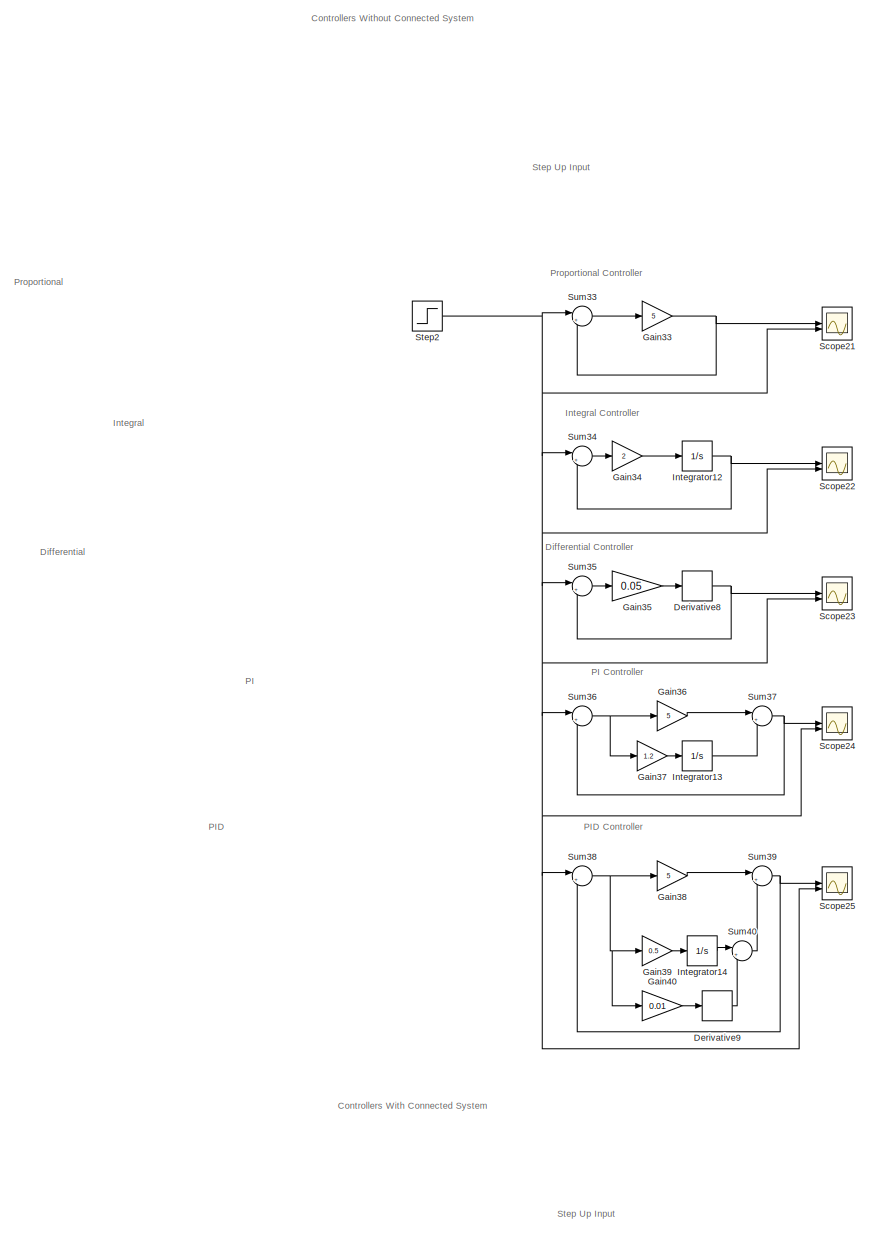
[diagram: root canvas - part 1/7, top left region]
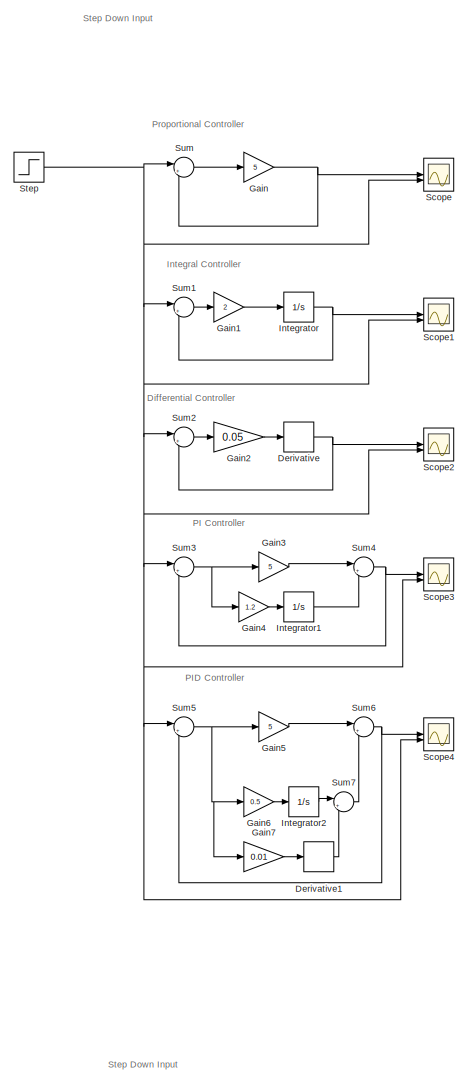
[diagram: root canvas - part 2/7, central region]
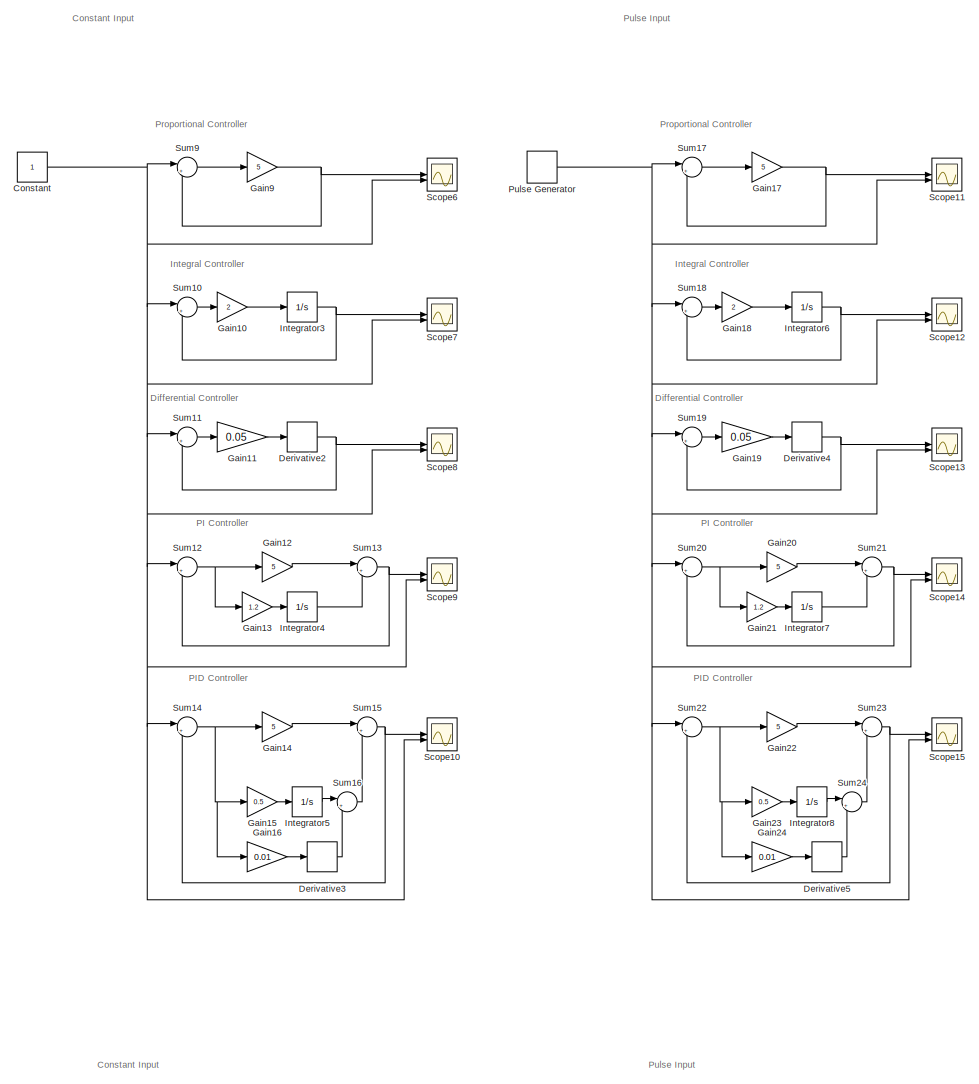
[diagram: root canvas - part 3/7, central region]
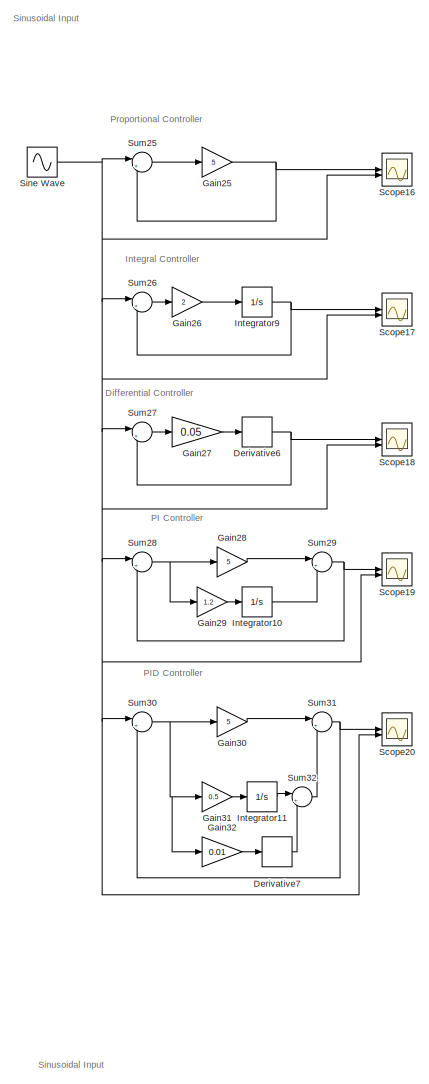
[diagram: root canvas - part 4/7, middle right region]
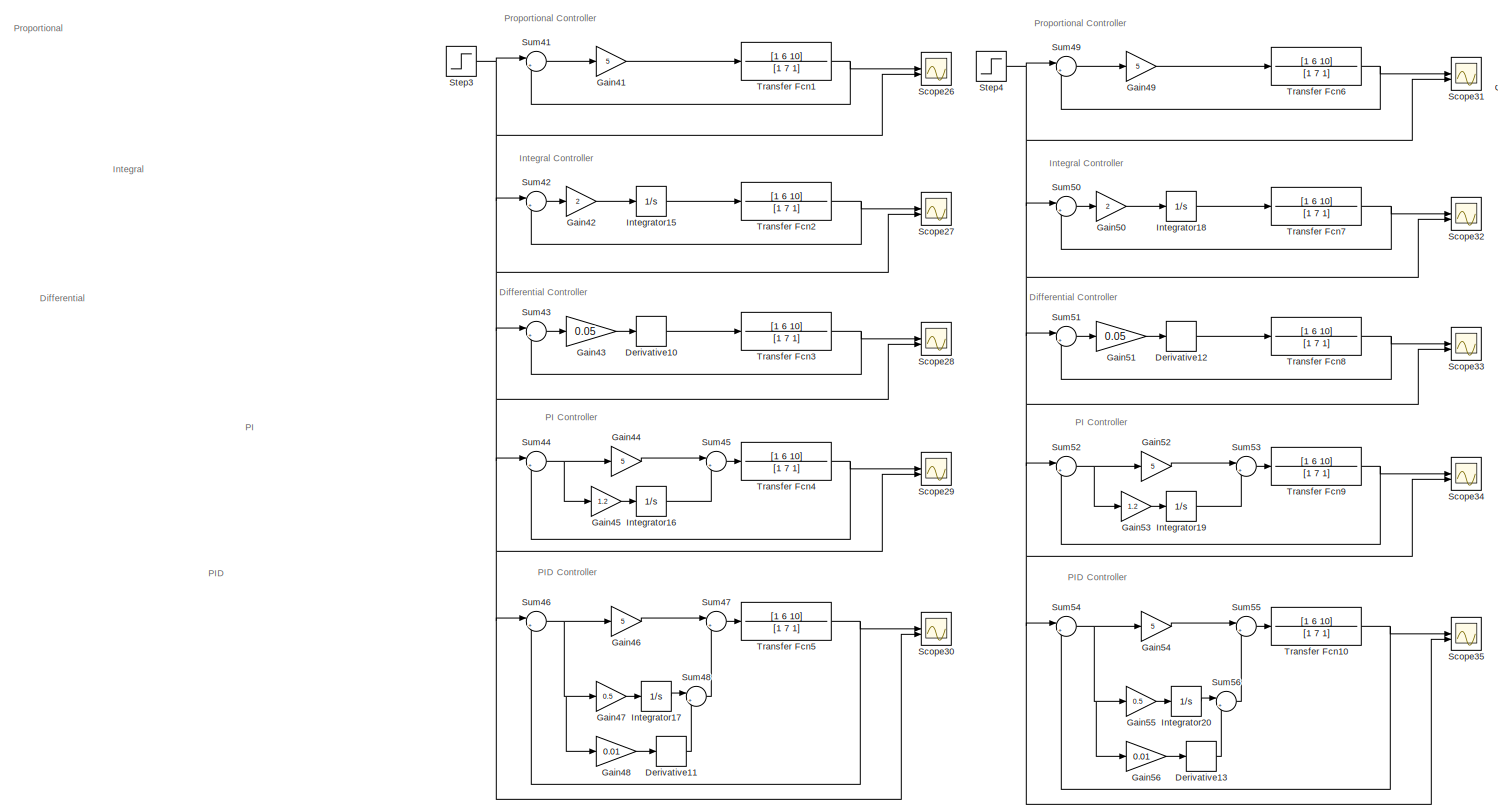
[diagram: root canvas - part 5/7, bottom left region]
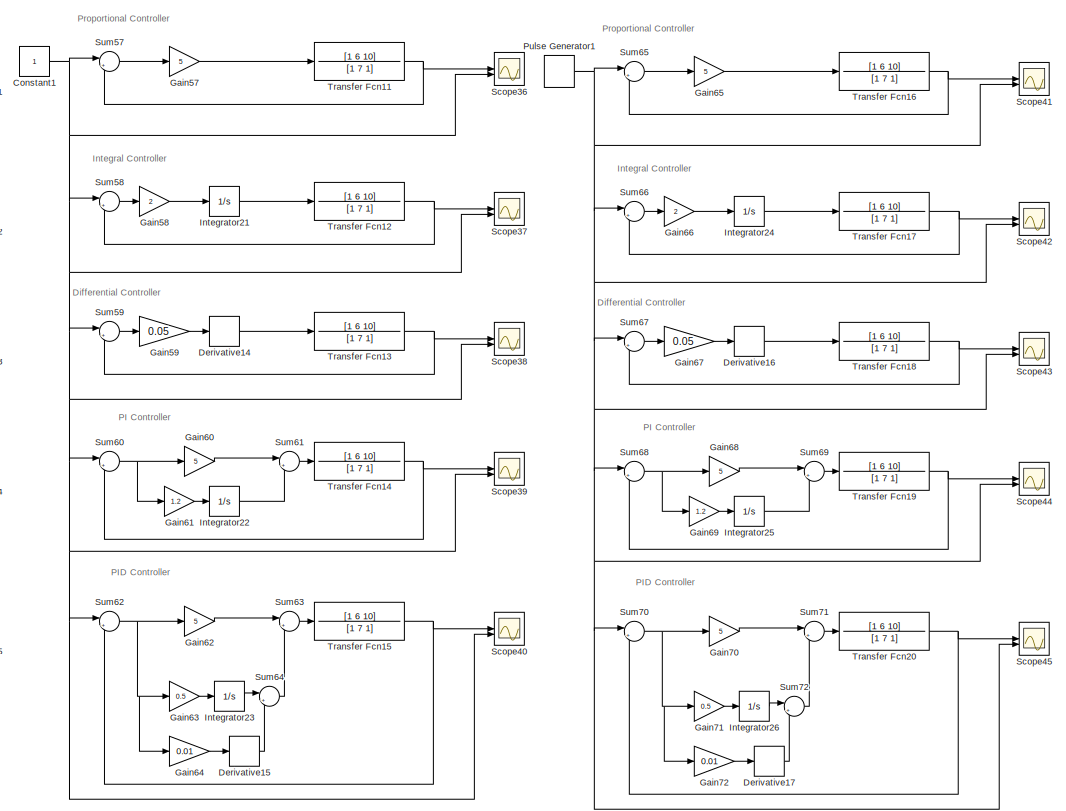
[diagram: root canvas - part 6/7, bottom center region]
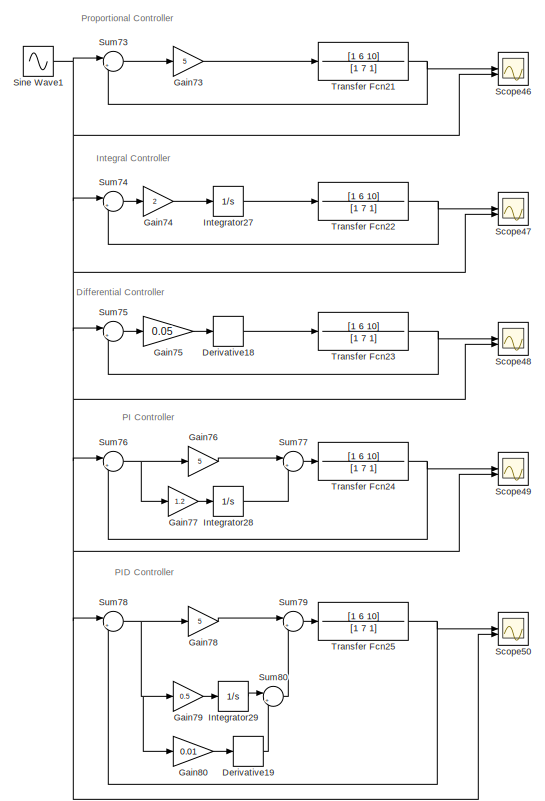
[diagram: root canvas - part 7/7, bottom right region]
MODEL slx_68e6b6f3994a
KIND model
CONFIG AbsTol = auto
CONFIG EnableMultiTasking = off
CONFIG FixedStep = auto
CONFIG MaxStep = auto
CONFIG MinStep = auto
CONFIG RelTol = 1e-9
CONFIG SampleTimeConstraint = Unconstrained
CONFIG SolverName = VariableStepAuto
CONFIG StartTime = 0.0
CONFIG StopTime = 12
BLOCK [Constant] Constant
BLOCK [Constant] Constant1
BLOCK [Derivative] Derivative
BLOCK [Derivative] Derivative1
BLOCK [Derivative] Derivative10
BLOCK [Derivative] Derivative11
BLOCK [Derivative] Derivative12
BLOCK [Derivative] Derivative13
BLOCK [Derivative] Derivative14
BLOCK [Derivative] Derivative15
BLOCK [Derivative] Derivative16
BLOCK [Derivative] Derivative17
BLOCK [Derivative] Derivative18
BLOCK [Derivative] Derivative19
BLOCK [Derivative] Derivative2
BLOCK [Derivative] Derivative3
BLOCK [Derivative] Derivative4
BLOCK [Derivative] Derivative5
BLOCK [Derivative] Derivative6
BLOCK [Derivative] Derivative7
BLOCK [Derivative] Derivative8
BLOCK [Derivative] Derivative9
BLOCK [Gain] Gain
  Gain = 5
BLOCK [Gain] Gain1
  Gain = 2
BLOCK [Gain] Gain10
  Gain = 2
BLOCK [Gain] Gain11
  Gain = 0.05
BLOCK [Gain] Gain12
  Gain = 5
BLOCK [Gain] Gain13
  Gain = 1.2
BLOCK [Gain] Gain14
  Gain = 5
BLOCK [Gain] Gain15
  Gain = 0.5
BLOCK [Gain] Gain16
  Gain = 0.01
BLOCK [Gain] Gain17
  Gain = 5
BLOCK [Gain] Gain18
  Gain = 2
BLOCK [Gain] Gain19
  Gain = 0.05
BLOCK [Gain] Gain2
  Gain = 0.05
BLOCK [Gain] Gain20
  Gain = 5
BLOCK [Gain] Gain21
  Gain = 1.2
BLOCK [Gain] Gain22
  Gain = 5
BLOCK [Gain] Gain23
  Gain = 0.5
BLOCK [Gain] Gain24
  Gain = 0.01
BLOCK [Gain] Gain25
  Gain = 5
BLOCK [Gain] Gain26
  Gain = 2
BLOCK [Gain] Gain27
  Gain = 0.05
BLOCK [Gain] Gain28
  Gain = 5
BLOCK [Gain] Gain29
  Gain = 1.2
BLOCK [Gain] Gain3
  Gain = 5
BLOCK [Gain] Gain30
  Gain = 5
BLOCK [Gain] Gain31
  Gain = 0.5
BLOCK [Gain] Gain32
  Gain = 0.01
BLOCK [Gain] Gain33
  Gain = 5
BLOCK [Gain] Gain34
  Gain = 2
BLOCK [Gain] Gain35
  Gain = 0.05
BLOCK [Gain] Gain36
  Gain = 5
BLOCK [Gain] Gain37
  Gain = 1.2
BLOCK [Gain] Gain38
  Gain = 5
BLOCK [Gain] Gain39
  Gain = 0.5
BLOCK [Gain] Gain4
  Gain = 1.2
BLOCK [Gain] Gain40
  Gain = 0.01
BLOCK [Gain] Gain41
  Gain = 5
BLOCK [Gain] Gain42
  Gain = 2
BLOCK [Gain] Gain43
  Gain = 0.05
BLOCK [Gain] Gain44
  Gain = 5
BLOCK [Gain] Gain45
  Gain = 1.2
BLOCK [Gain] Gain46
  Gain = 5
BLOCK [Gain] Gain47
  Gain = 0.5
BLOCK [Gain] Gain48
  Gain = 0.01
BLOCK [Gain] Gain49
  Gain = 5
BLOCK [Gain] Gain5
  Gain = 5
BLOCK [Gain] Gain50
  Gain = 2
BLOCK [Gain] Gain51
  Gain = 0.05
BLOCK [Gain] Gain52
  Gain = 5
BLOCK [Gain] Gain53
  Gain = 1.2
BLOCK [Gain] Gain54
  Gain = 5
BLOCK [Gain] Gain55
  Gain = 0.5
BLOCK [Gain] Gain56
  Gain = 0.01
BLOCK [Gain] Gain57
  Gain = 5
BLOCK [Gain] Gain58
  Gain = 2
BLOCK [Gain] Gain59
  Gain = 0.05
BLOCK [Gain] Gain6
  Gain = 0.5
BLOCK [Gain] Gain60
  Gain = 5
BLOCK [Gain] Gain61
  Gain = 1.2
BLOCK [Gain] Gain62
  Gain = 5
BLOCK [Gain] Gain63
  Gain = 0.5
BLOCK [Gain] Gain64
  Gain = 0.01
BLOCK [Gain] Gain65
  Gain = 5
BLOCK [Gain] Gain66
  Gain = 2
BLOCK [Gain] Gain67
  Gain = 0.05
BLOCK [Gain] Gain68
  Gain = 5
BLOCK [Gain] Gain69
  Gain = 1.2
BLOCK [Gain] Gain7
  Gain = 0.01
BLOCK [Gain] Gain70
  Gain = 5
BLOCK [Gain] Gain71
  Gain = 0.5
BLOCK [Gain] Gain72
  Gain = 0.01
BLOCK [Gain] Gain73
  Gain = 5
BLOCK [Gain] Gain74
  Gain = 2
BLOCK [Gain] Gain75
  Gain = 0.05
BLOCK [Gain] Gain76
  Gain = 5
BLOCK [Gain] Gain77
  Gain = 1.2
BLOCK [Gain] Gain78
  Gain = 5
BLOCK [Gain] Gain79
  Gain = 0.5
BLOCK [Gain] Gain80
  Gain = 0.01
BLOCK [Gain] Gain9
  Gain = 5
BLOCK [Integrator] Integrator
BLOCK [Integrator] Integrator1
BLOCK [Integrator] Integrator10
BLOCK [Integrator] Integrator11
BLOCK [Integrator] Integrator12
BLOCK [Integrator] Integrator13
BLOCK [Integrator] Integrator14
BLOCK [Integrator] Integrator15
BLOCK [Integrator] Integrator16
BLOCK [Integrator] Integrator17
BLOCK [Integrator] Integrator18
BLOCK [Integrator] Integrator19
BLOCK [Integrator] Integrator2
BLOCK [Integrator] Integrator20
BLOCK [Integrator] Integrator21
BLOCK [Integrator] Integrator22
BLOCK [Integrator] Integrator23
BLOCK [Integrator] Integrator24
BLOCK [Integrator] Integrator25
BLOCK [Integrator] Integrator26
BLOCK [Integrator] Integrator27
BLOCK [Integrator] Integrator28
BLOCK [Integrator] Integrator29
BLOCK [Integrator] Integrator3
BLOCK [Integrator] Integrator4
BLOCK [Integrator] Integrator5
BLOCK [Integrator] Integrator6
BLOCK [Integrator] Integrator7
BLOCK [Integrator] Integrator8
BLOCK [Integrator] Integrator9
BLOCK [DiscretePulseGenerator] Pulse Generator
  Period = 10
  PulseType = Time based
  PulseWidth = 50
BLOCK [DiscretePulseGenerator] Pulse Generator1
  Period = 10
  PulseType = Time based
  PulseWidth = 50
BLOCK [Scope] Scope
  Floating = off
  NumInputPorts = 2
  ScopeSpecificationString = Simulink.scopes.TimeScopeBlockCfg('CurrentConfiguration', extmgr.ConfigurationSet(extmgr.Configuration('Core','General UI',true),extmgr.Configuration('Core','Source UI',true),extmgr.Configuration('Sources','WiredSimulink',true),extmgr.Configuration('Visuals','Time Domain',true,'SerializedDisplays',{struct('MinYLimReal','-0.125','MaxYLimReal','1.125','YLabelReal','','MinYLimMag','0.00000','MaxYLimM...<+1350ch>
BLOCK [Scope] Scope1
  Floating = off
  NumInputPorts = 2
  ScopeSpecificationString = Simulink.scopes.TimeScopeBlockCfg('CurrentConfiguration', extmgr.ConfigurationSet(extmgr.Configuration('Core','General UI',true),extmgr.Configuration('Core','Source UI',true),extmgr.Configuration('Sources','WiredSimulink',true,'DataLoggingVariableName','ScopeData1'),extmgr.Configuration('Visuals','Time Domain',true,'SerializedDisplays',{struct('MinYLimReal','-0.125','MaxYLimReal','1.125','YLabelRe...<+1394ch>
BLOCK [Scope] Scope10
  Floating = off
  NumInputPorts = 2
  ScopeSpecificationString = Simulink.scopes.TimeScopeBlockCfg('CurrentConfiguration', extmgr.ConfigurationSet(extmgr.Configuration('Core','General UI',true),extmgr.Configuration('Core','Source UI',true),extmgr.Configuration('Sources','WiredSimulink',true,'DataLoggingVariableName','ScopeData6'),extmgr.Configuration('Visuals','Time Domain',true,'SerializedDisplays',{struct('MinYLimReal','-0.24862','MaxYLimReal','1.13874','YLab...<+1401ch>
BLOCK [Scope] Scope11
  Floating = off
  NumInputPorts = 2
  ScopeSpecificationString = Simulink.scopes.TimeScopeBlockCfg('CurrentConfiguration', extmgr.ConfigurationSet(extmgr.Configuration('Core','General UI',true),extmgr.Configuration('Core','Source UI',true),extmgr.Configuration('Sources','WiredSimulink',true,'DataLoggingVariableName','ScopeData11'),extmgr.Configuration('Visuals','Time Domain',true,'SerializedDisplays',{struct('MinYLimReal','-0.125','MaxYLimReal','1.125','YLabelR...<+1403ch>
BLOCK [Scope] Scope12
  Floating = off
  NumInputPorts = 2
  ScopeSpecificationString = Simulink.scopes.TimeScopeBlockCfg('CurrentConfiguration', extmgr.ConfigurationSet(extmgr.Configuration('Core','General UI',true),extmgr.Configuration('Core','Source UI',true),extmgr.Configuration('Sources','WiredSimulink',true,'DataLoggingVariableName','ScopeData12'),extmgr.Configuration('Visuals','Time Domain',true,'SerializedDisplays',{struct('MinYLimReal','-0.125','MaxYLimReal','1.125','YLabelR...<+1407ch>
BLOCK [Scope] Scope13
  Floating = off
  NumInputPorts = 2
  ScopeSpecificationString = Simulink.scopes.TimeScopeBlockCfg('CurrentConfiguration', extmgr.ConfigurationSet(extmgr.Configuration('Core','General UI',true),extmgr.Configuration('Core','Source UI',true),extmgr.Configuration('Sources','WiredSimulink',true,'DataLoggingVariableName','ScopeData13'),extmgr.Configuration('Visuals','Time Domain',true,'SerializedDisplays',{struct('MinYLimReal','-1.25','MaxYLimReal','1.25','YLabelRea...<+1401ch>
BLOCK [Scope] Scope14
  Floating = off
  NumInputPorts = 2
  ScopeSpecificationString = Simulink.scopes.TimeScopeBlockCfg('CurrentConfiguration', extmgr.ConfigurationSet(extmgr.Configuration('Core','General UI',true),extmgr.Configuration('Core','Source UI',true),extmgr.Configuration('Sources','WiredSimulink',true,'DataLoggingVariableName','ScopeData14'),extmgr.Configuration('Visuals','Time Domain',true,'SerializedDisplays',{struct('MinYLimReal','-0.125','MaxYLimReal','1.125','YLabelR...<+1389ch>
BLOCK [Scope] Scope15
  Floating = off
  NumInputPorts = 2
  ScopeSpecificationString = Simulink.scopes.TimeScopeBlockCfg('CurrentConfiguration', extmgr.ConfigurationSet(extmgr.Configuration('Core','General UI',true),extmgr.Configuration('Core','Source UI',true),extmgr.Configuration('Sources','WiredSimulink',true,'DataLoggingVariableName','ScopeData15'),extmgr.Configuration('Visuals','Time Domain',true,'SerializedDisplays',{struct('MinYLimReal','-0.24862','MaxYLimReal','1.13874','YLa...<+1402ch>
BLOCK [Scope] Scope16
  Floating = off
  NumInputPorts = 2
  ScopeSpecificationString = Simulink.scopes.TimeScopeBlockCfg('CurrentConfiguration', extmgr.ConfigurationSet(extmgr.Configuration('Core','General UI',true),extmgr.Configuration('Core','Source UI',true),extmgr.Configuration('Sources','WiredSimulink',true,'DataLoggingVariableName','ScopeData16'),extmgr.Configuration('Visuals','Time Domain',true,'SerializedDisplays',{struct('MinYLimReal','-1.25','MaxYLimReal','1.25','YLabelRea...<+1391ch>
BLOCK [Scope] Scope17
  Floating = off
  NumInputPorts = 2
  ScopeSpecificationString = Simulink.scopes.TimeScopeBlockCfg('CurrentConfiguration', extmgr.ConfigurationSet(extmgr.Configuration('Core','General UI',true),extmgr.Configuration('Core','Source UI',true),extmgr.Configuration('Sources','WiredSimulink',true,'DataLoggingVariableName','ScopeData17'),extmgr.Configuration('Visuals','Time Domain',true,'SerializedDisplays',{struct('MinYLimReal','-1.25','MaxYLimReal','1.25','YLabelRea...<+1395ch>
BLOCK [Scope] Scope18
  Floating = off
  NumInputPorts = 2
  ScopeSpecificationString = Simulink.scopes.TimeScopeBlockCfg('CurrentConfiguration', extmgr.ConfigurationSet(extmgr.Configuration('Core','General UI',true),extmgr.Configuration('Core','Source UI',true),extmgr.Configuration('Sources','WiredSimulink',true,'DataLoggingVariableName','ScopeData18'),extmgr.Configuration('Visuals','Time Domain',true,'SerializedDisplays',{struct('MinYLimReal','-1.25','MaxYLimReal','1.25','YLabelRea...<+1395ch>
BLOCK [Scope] Scope19
  Floating = off
  NumInputPorts = 2
  ScopeSpecificationString = Simulink.scopes.TimeScopeBlockCfg('CurrentConfiguration', extmgr.ConfigurationSet(extmgr.Configuration('Core','General UI',true),extmgr.Configuration('Core','Source UI',true),extmgr.Configuration('Sources','WiredSimulink',true,'DataLoggingVariableName','ScopeData19'),extmgr.Configuration('Visuals','Time Domain',true,'SerializedDisplays',{struct('MinYLimReal','-1.25','MaxYLimReal','1.25','YLabelRea...<+1389ch>
BLOCK [Scope] Scope2
  Floating = off
  NumInputPorts = 2
  ScopeSpecificationString = Simulink.scopes.TimeScopeBlockCfg('CurrentConfiguration', extmgr.ConfigurationSet(extmgr.Configuration('Core','General UI',true),extmgr.Configuration('Core','Source UI',true),extmgr.Configuration('Sources','WiredSimulink',true,'DataLoggingVariableName','ScopeData2'),extmgr.Configuration('Visuals','Time Domain',true,'SerializedDisplays',{struct('MinYLimReal','-1.25','MaxYLimReal','1.25','YLabelReal...<+1388ch>
BLOCK [Scope] Scope20
  Floating = off
  NumInputPorts = 2
  ScopeSpecificationString = Simulink.scopes.TimeScopeBlockCfg('CurrentConfiguration', extmgr.ConfigurationSet(extmgr.Configuration('Core','General UI',true),extmgr.Configuration('Core','Source UI',true),extmgr.Configuration('Sources','WiredSimulink',true,'DataLoggingVariableName','ScopeData20'),extmgr.Configuration('Visuals','Time Domain',true,'SerializedDisplays',{struct('MinYLimReal','-1.25','MaxYLimReal','1.25','YLabelRea...<+1390ch>
BLOCK [Scope] Scope21
  Floating = off
  NumInputPorts = 2
  ScopeSpecificationString = Simulink.scopes.TimeScopeBlockCfg('CurrentConfiguration', extmgr.ConfigurationSet(extmgr.Configuration('Core','General UI',true),extmgr.Configuration('Core','Source UI',true),extmgr.Configuration('Sources','WiredSimulink',true,'DataLoggingVariableName','ScopeData21'),extmgr.Configuration('Visuals','Time Domain',true,'SerializedDisplays',{struct('MinYLimReal','-0.125','MaxYLimReal','1.125','YLabelR...<+1393ch>
BLOCK [Scope] Scope22
  Floating = off
  NumInputPorts = 2
  ScopeSpecificationString = Simulink.scopes.TimeScopeBlockCfg('CurrentConfiguration', extmgr.ConfigurationSet(extmgr.Configuration('Core','General UI',true),extmgr.Configuration('Core','Source UI',true),extmgr.Configuration('Sources','WiredSimulink',true,'DataLoggingVariableName','ScopeData22'),extmgr.Configuration('Visuals','Time Domain',true,'SerializedDisplays',{struct('MinYLimReal','-0.125','MaxYLimReal','1.125','YLabelR...<+1398ch>
BLOCK [Scope] Scope23
  Floating = off
  NumInputPorts = 2
  ScopeSpecificationString = Simulink.scopes.TimeScopeBlockCfg('CurrentConfiguration', extmgr.ConfigurationSet(extmgr.Configuration('Core','General UI',true),extmgr.Configuration('Core','Source UI',true),extmgr.Configuration('Sources','WiredSimulink',true,'DataLoggingVariableName','ScopeData23'),extmgr.Configuration('Visuals','Time Domain',true,'SerializedDisplays',{struct('MinYLimReal','-0.125','MaxYLimReal','1.125','YLabelR...<+1397ch>
BLOCK [Scope] Scope24
  Floating = off
  NumInputPorts = 2
  ScopeSpecificationString = Simulink.scopes.TimeScopeBlockCfg('CurrentConfiguration', extmgr.ConfigurationSet(extmgr.Configuration('Core','General UI',true),extmgr.Configuration('Core','Source UI',true),extmgr.Configuration('Sources','WiredSimulink',true,'DataLoggingVariableName','ScopeData24'),extmgr.Configuration('Visuals','Time Domain',true,'SerializedDisplays',{struct('MinYLimReal','-0.125','MaxYLimReal','1.125','YLabelR...<+1389ch>
BLOCK [Scope] Scope25
  Floating = off
  NumInputPorts = 2
  ScopeSpecificationString = Simulink.scopes.TimeScopeBlockCfg('CurrentConfiguration', extmgr.ConfigurationSet(extmgr.Configuration('Core','General UI',true),extmgr.Configuration('Core','Source UI',true),extmgr.Configuration('Sources','WiredSimulink',true,'DataLoggingVariableName','ScopeData25'),extmgr.Configuration('Visuals','Time Domain',true,'SerializedDisplays',{struct('MinYLimReal','-0.24862','MaxYLimReal','1.13874','YLa...<+1402ch>
BLOCK [Scope] Scope26
  Floating = off
  NumInputPorts = 2
  ScopeSpecificationString = Simulink.scopes.TimeScopeBlockCfg('CurrentConfiguration', extmgr.ConfigurationSet(extmgr.Configuration('Core','General UI',true),extmgr.Configuration('Core','Source UI',true),extmgr.Configuration('Sources','WiredSimulink',true,'DataLoggingVariableName','ScopeData26'),extmgr.Configuration('Visuals','Time Domain',true,'SerializedDisplays',{struct('MinYLimReal','-0.125','MaxYLimReal','1.125','YLabelR...<+1378ch>
BLOCK [Scope] Scope27
  Floating = off
  NumInputPorts = 2
  ScopeSpecificationString = Simulink.scopes.TimeScopeBlockCfg('CurrentConfiguration', extmgr.ConfigurationSet(extmgr.Configuration('Core','General UI',true),extmgr.Configuration('Core','Source UI',true),extmgr.Configuration('Sources','WiredSimulink',true,'DataLoggingVariableName','ScopeData27'),extmgr.Configuration('Visuals','Time Domain',true,'SerializedDisplays',{struct('MinYLimReal','-0.16156','MaxYLimReal','1.45407','YLa...<+1411ch>
BLOCK [Scope] Scope28
  Floating = off
  NumInputPorts = 2
  ScopeSpecificationString = Simulink.scopes.TimeScopeBlockCfg('CurrentConfiguration', extmgr.ConfigurationSet(extmgr.Configuration('Core','General UI',true),extmgr.Configuration('Core','Source UI',true),extmgr.Configuration('Sources','WiredSimulink',true,'DataLoggingVariableName','ScopeData28'),extmgr.Configuration('Visuals','Time Domain',true,'SerializedDisplays',{struct('MinYLimReal','-0.125','MaxYLimReal','1.125','YLabelR...<+1401ch>
BLOCK [Scope] Scope29
  Floating = off
  NumInputPorts = 2
  ScopeSpecificationString = Simulink.scopes.TimeScopeBlockCfg('CurrentConfiguration', extmgr.ConfigurationSet(extmgr.Configuration('Core','General UI',true),extmgr.Configuration('Core','Source UI',true),extmgr.Configuration('Sources','WiredSimulink',true,'DataLoggingVariableName','ScopeData29'),extmgr.Configuration('Visuals','Time Domain',true,'SerializedDisplays',{struct('MinYLimReal','-0.12583','MaxYLimReal','1.13245','YLa...<+1411ch>
BLOCK [Scope] Scope3
  Floating = off
  NumInputPorts = 2
  ScopeSpecificationString = Simulink.scopes.TimeScopeBlockCfg('CurrentConfiguration', extmgr.ConfigurationSet(extmgr.Configuration('Core','General UI',true),extmgr.Configuration('Core','Source UI',true),extmgr.Configuration('Sources','WiredSimulink',true,'DataLoggingVariableName','ScopeData3'),extmgr.Configuration('Visuals','Time Domain',true,'SerializedDisplays',{struct('MinYLimReal','-0.125','MaxYLimReal','1.125','YLabelRe...<+1388ch>
BLOCK [Scope] Scope30
  Floating = off
  NumInputPorts = 2
  ScopeSpecificationString = Simulink.scopes.TimeScopeBlockCfg('CurrentConfiguration', extmgr.ConfigurationSet(extmgr.Configuration('Core','General UI',true),extmgr.Configuration('Core','Source UI',true),extmgr.Configuration('Sources','WiredSimulink',true,'DataLoggingVariableName','ScopeData30'),extmgr.Configuration('Visuals','Time Domain',true,'SerializedDisplays',{struct('MinYLimReal','-0.125','MaxYLimReal','1.125','YLabelR...<+1400ch>
BLOCK [Scope] Scope31
  Floating = off
  NumInputPorts = 2
  ScopeSpecificationString = Simulink.scopes.TimeScopeBlockCfg('CurrentConfiguration', extmgr.ConfigurationSet(extmgr.Configuration('Core','General UI',true),extmgr.Configuration('Core','Source UI',true),extmgr.Configuration('Sources','WiredSimulink',true,'DataLoggingVariableName','ScopeData31'),extmgr.Configuration('Visuals','Time Domain',true,'SerializedDisplays',{struct('MinYLimReal','-0.125','MaxYLimReal','1.125','YLabelR...<+1400ch>
BLOCK [Scope] Scope32
  Floating = off
  NumInputPorts = 2
  ScopeSpecificationString = Simulink.scopes.TimeScopeBlockCfg('CurrentConfiguration', extmgr.ConfigurationSet(extmgr.Configuration('Core','General UI',true),extmgr.Configuration('Core','Source UI',true),extmgr.Configuration('Sources','WiredSimulink',true,'DataLoggingVariableName','ScopeData32'),extmgr.Configuration('Visuals','Time Domain',true,'SerializedDisplays',{struct('MinYLimReal','-0.48096','MaxYLimReal','1.48956','YLa...<+1411ch>
BLOCK [Scope] Scope33
  Floating = off
  NumInputPorts = 2
  ScopeSpecificationString = Simulink.scopes.TimeScopeBlockCfg('CurrentConfiguration', extmgr.ConfigurationSet(extmgr.Configuration('Core','General UI',true),extmgr.Configuration('Core','Source UI',true),extmgr.Configuration('Sources','WiredSimulink',true,'DataLoggingVariableName','ScopeData33'),extmgr.Configuration('Visuals','Time Domain',true,'SerializedDisplays',{struct('MinYLimReal','-1.25','MaxYLimReal','1.25','YLabelRea...<+1395ch>
BLOCK [Scope] Scope34
  Floating = off
  NumInputPorts = 2
  ScopeSpecificationString = Simulink.scopes.TimeScopeBlockCfg('CurrentConfiguration', extmgr.ConfigurationSet(extmgr.Configuration('Core','General UI',true),extmgr.Configuration('Core','Source UI',true),extmgr.Configuration('Sources','WiredSimulink',true,'DataLoggingVariableName','ScopeData34'),extmgr.Configuration('Visuals','Time Domain',true,'SerializedDisplays',{struct('MinYLimReal','-0.13082','MaxYLimReal','1.133','YLabe...<+1403ch>
BLOCK [Scope] Scope35
  Floating = off
  NumInputPorts = 2
  ScopeSpecificationString = Simulink.scopes.TimeScopeBlockCfg('CurrentConfiguration', extmgr.ConfigurationSet(extmgr.Configuration('Core','General UI',true),extmgr.Configuration('Core','Source UI',true),extmgr.Configuration('Sources','WiredSimulink',true,'DataLoggingVariableName','ScopeData35'),extmgr.Configuration('Visuals','Time Domain',true,'SerializedDisplays',{struct('MinYLimReal','-0.1296','MaxYLimReal','1.12551','YLab...<+1411ch>
BLOCK [Scope] Scope36
  Floating = off
  NumInputPorts = 2
  ScopeSpecificationString = Simulink.scopes.TimeScopeBlockCfg('CurrentConfiguration', extmgr.ConfigurationSet(extmgr.Configuration('Core','General UI',true),extmgr.Configuration('Core','Source UI',true),extmgr.Configuration('Sources','WiredSimulink',true,'DataLoggingVariableName','ScopeData36'),extmgr.Configuration('Visuals','Time Domain',true,'SerializedDisplays',{struct('MinYLimReal','-0.125','MaxYLimReal','1.125','YLabelR...<+1399ch>
BLOCK [Scope] Scope37
  Floating = off
  NumInputPorts = 2
  ScopeSpecificationString = Simulink.scopes.TimeScopeBlockCfg('CurrentConfiguration', extmgr.ConfigurationSet(extmgr.Configuration('Core','General UI',true),extmgr.Configuration('Core','Source UI',true),extmgr.Configuration('Sources','WiredSimulink',true,'DataLoggingVariableName','ScopeData37'),extmgr.Configuration('Visuals','Time Domain',true,'SerializedDisplays',{struct('MinYLimReal','-0.16156','MaxYLimReal','1.45405','YLa...<+1411ch>
BLOCK [Scope] Scope38
  Floating = off
  NumInputPorts = 2
  ScopeSpecificationString = Simulink.scopes.TimeScopeBlockCfg('CurrentConfiguration', extmgr.ConfigurationSet(extmgr.Configuration('Core','General UI',true),extmgr.Configuration('Core','Source UI',true),extmgr.Configuration('Sources','WiredSimulink',true,'DataLoggingVariableName','ScopeData38'),extmgr.Configuration('Visuals','Time Domain',true,'SerializedDisplays',{struct('MinYLimReal','-0.125','MaxYLimReal','1.125','YLabelR...<+1401ch>
BLOCK [Scope] Scope39
  Floating = off
  NumInputPorts = 2
  ScopeSpecificationString = Simulink.scopes.TimeScopeBlockCfg('CurrentConfiguration', extmgr.ConfigurationSet(extmgr.Configuration('Core','General UI',true),extmgr.Configuration('Core','Source UI',true),extmgr.Configuration('Sources','WiredSimulink',true,'DataLoggingVariableName','ScopeData39'),extmgr.Configuration('Visuals','Time Domain',true,'SerializedDisplays',{struct('MinYLimReal','-0.12583','MaxYLimReal','1.13245','YLa...<+1411ch>
BLOCK [Scope] Scope4
  Floating = off
  NumInputPorts = 2
  ScopeSpecificationString = Simulink.scopes.TimeScopeBlockCfg('CurrentConfiguration', extmgr.ConfigurationSet(extmgr.Configuration('Core','General UI',true),extmgr.Configuration('Core','Source UI',true),extmgr.Configuration('Sources','WiredSimulink',true,'DataLoggingVariableName','ScopeData4'),extmgr.Configuration('Visuals','Time Domain',true,'SerializedDisplays',{struct('MinYLimReal','-0.24862','MaxYLimReal','1.13874','YLab...<+1401ch>
BLOCK [Scope] Scope40
  Floating = off
  NumInputPorts = 2
  ScopeSpecificationString = Simulink.scopes.TimeScopeBlockCfg('CurrentConfiguration', extmgr.ConfigurationSet(extmgr.Configuration('Core','General UI',true),extmgr.Configuration('Core','Source UI',true),extmgr.Configuration('Sources','WiredSimulink',true,'DataLoggingVariableName','ScopeData40'),extmgr.Configuration('Visuals','Time Domain',true,'SerializedDisplays',{struct('MinYLimReal','-0.125','MaxYLimReal','1.125','YLabelR...<+1400ch>
BLOCK [Scope] Scope41
  Floating = off
  NumInputPorts = 2
  ScopeSpecificationString = Simulink.scopes.TimeScopeBlockCfg('CurrentConfiguration', extmgr.ConfigurationSet(extmgr.Configuration('Core','General UI',true),extmgr.Configuration('Core','Source UI',true),extmgr.Configuration('Sources','WiredSimulink',true,'DataLoggingVariableName','ScopeData41'),extmgr.Configuration('Visuals','Time Domain',true,'SerializedDisplays',{struct('MinYLimReal','-0.125','MaxYLimReal','1.125','YLabelR...<+1411ch>
BLOCK [Scope] Scope42
  Floating = off
  NumInputPorts = 2
  ScopeSpecificationString = Simulink.scopes.TimeScopeBlockCfg('CurrentConfiguration', extmgr.ConfigurationSet(extmgr.Configuration('Core','General UI',true),extmgr.Configuration('Core','Source UI',true),extmgr.Configuration('Sources','WiredSimulink',true,'DataLoggingVariableName','ScopeData42'),extmgr.Configuration('Visuals','Time Domain',true,'SerializedDisplays',{struct('MinYLimReal','-0.48096','MaxYLimReal','1.48956','YLa...<+1423ch>
BLOCK [Scope] Scope43
  Floating = off
  NumInputPorts = 2
  ScopeSpecificationString = Simulink.scopes.TimeScopeBlockCfg('CurrentConfiguration', extmgr.ConfigurationSet(extmgr.Configuration('Core','General UI',true),extmgr.Configuration('Core','Source UI',true),extmgr.Configuration('Sources','WiredSimulink',true,'DataLoggingVariableName','ScopeData43'),extmgr.Configuration('Visuals','Time Domain',true,'SerializedDisplays',{struct('MinYLimReal','-1.25','MaxYLimReal','1.25','YLabelRea...<+1407ch>
BLOCK [Scope] Scope44
  Floating = off
  NumInputPorts = 2
  ScopeSpecificationString = Simulink.scopes.TimeScopeBlockCfg('CurrentConfiguration', extmgr.ConfigurationSet(extmgr.Configuration('Core','General UI',true),extmgr.Configuration('Core','Source UI',true),extmgr.Configuration('Sources','WiredSimulink',true,'DataLoggingVariableName','ScopeData44'),extmgr.Configuration('Visuals','Time Domain',true,'SerializedDisplays',{struct('MinYLimReal','-0.13082','MaxYLimReal','1.133','YLabe...<+1415ch>
BLOCK [Scope] Scope45
  Floating = off
  NumInputPorts = 2
  ScopeSpecificationString = Simulink.scopes.TimeScopeBlockCfg('CurrentConfiguration', extmgr.ConfigurationSet(extmgr.Configuration('Core','General UI',true),extmgr.Configuration('Core','Source UI',true),extmgr.Configuration('Sources','WiredSimulink',true,'DataLoggingVariableName','ScopeData45'),extmgr.Configuration('Visuals','Time Domain',true,'SerializedDisplays',{struct('MinYLimReal','-0.1296','MaxYLimReal','1.12551','YLab...<+1422ch>
BLOCK [Scope] Scope46
  Floating = off
  NumInputPorts = 2
  ScopeSpecificationString = Simulink.scopes.TimeScopeBlockCfg('CurrentConfiguration', extmgr.ConfigurationSet(extmgr.Configuration('Core','General UI',true),extmgr.Configuration('Core','Source UI',true),extmgr.Configuration('Sources','WiredSimulink',true,'DataLoggingVariableName','ScopeData46'),extmgr.Configuration('Visuals','Time Domain',true,'SerializedDisplays',{struct('MinYLimReal','-1.25','MaxYLimReal','1.25','YLabelRea...<+1399ch>
BLOCK [Scope] Scope47
  Floating = off
  NumInputPorts = 2
  ScopeSpecificationString = Simulink.scopes.TimeScopeBlockCfg('CurrentConfiguration', extmgr.ConfigurationSet(extmgr.Configuration('Core','General UI',true),extmgr.Configuration('Core','Source UI',true),extmgr.Configuration('Sources','WiredSimulink',true,'DataLoggingVariableName','ScopeData47'),extmgr.Configuration('Visuals','Time Domain',true,'SerializedDisplays',{struct('MinYLimReal','-1.67672','MaxYLimReal','1.66585','YLa...<+1417ch>
BLOCK [Scope] Scope48
  Floating = off
  NumInputPorts = 2
  ScopeSpecificationString = Simulink.scopes.TimeScopeBlockCfg('CurrentConfiguration', extmgr.ConfigurationSet(extmgr.Configuration('Core','General UI',true),extmgr.Configuration('Core','Source UI',true),extmgr.Configuration('Sources','WiredSimulink',true,'DataLoggingVariableName','ScopeData48'),extmgr.Configuration('Visuals','Time Domain',true,'SerializedDisplays',{struct('MinYLimReal','-1.25','MaxYLimReal','1.25','YLabelRea...<+1401ch>
BLOCK [Scope] Scope49
  Floating = off
  NumInputPorts = 2
  ScopeSpecificationString = Simulink.scopes.TimeScopeBlockCfg('CurrentConfiguration', extmgr.ConfigurationSet(extmgr.Configuration('Core','General UI',true),extmgr.Configuration('Core','Source UI',true),extmgr.Configuration('Sources','WiredSimulink',true,'DataLoggingVariableName','ScopeData49'),extmgr.Configuration('Visuals','Time Domain',true,'SerializedDisplays',{struct('MinYLimReal','-1.25','MaxYLimReal','1.25','YLabelRea...<+1399ch>
BLOCK [Scope] Scope50
  Floating = off
  NumInputPorts = 2
  ScopeSpecificationString = Simulink.scopes.TimeScopeBlockCfg('CurrentConfiguration', extmgr.ConfigurationSet(extmgr.Configuration('Core','General UI',true),extmgr.Configuration('Core','Source UI',true),extmgr.Configuration('Sources','WiredSimulink',true,'DataLoggingVariableName','ScopeData50'),extmgr.Configuration('Visuals','Time Domain',true,'SerializedDisplays',{struct('MinYLimReal','-1.25','MaxYLimReal','1.25','YLabelRea...<+1400ch>
BLOCK [Scope] Scope6
  Floating = off
  NumInputPorts = 2
  ScopeSpecificationString = Simulink.scopes.TimeScopeBlockCfg('CurrentConfiguration', extmgr.ConfigurationSet(extmgr.Configuration('Core','General UI',true),extmgr.Configuration('Core','Source UI',true),extmgr.Configuration('Sources','WiredSimulink',true,'DataLoggingVariableName','ScopeData7'),extmgr.Configuration('Visuals','Time Domain',true,'SerializedDisplays',{struct('MinYLimReal','-0.125','MaxYLimReal','1.125','YLabelRe...<+1389ch>
BLOCK [Scope] Scope7
  Floating = off
  NumInputPorts = 2
  ScopeSpecificationString = Simulink.scopes.TimeScopeBlockCfg('CurrentConfiguration', extmgr.ConfigurationSet(extmgr.Configuration('Core','General UI',true),extmgr.Configuration('Core','Source UI',true),extmgr.Configuration('Sources','WiredSimulink',true,'DataLoggingVariableName','ScopeData8'),extmgr.Configuration('Visuals','Time Domain',true,'SerializedDisplays',{struct('MinYLimReal','-0.125','MaxYLimReal','1.125','YLabelRe...<+1394ch>
BLOCK [Scope] Scope8
  Floating = off
  NumInputPorts = 2
  ScopeSpecificationString = Simulink.scopes.TimeScopeBlockCfg('CurrentConfiguration', extmgr.ConfigurationSet(extmgr.Configuration('Core','General UI',true),extmgr.Configuration('Core','Source UI',true),extmgr.Configuration('Sources','WiredSimulink',true,'DataLoggingVariableName','ScopeData9'),extmgr.Configuration('Visuals','Time Domain',true,'SerializedDisplays',{struct('MinYLimReal','-1.25','MaxYLimReal','1.25','YLabelReal...<+1388ch>
BLOCK [Scope] Scope9
  Floating = off
  NumInputPorts = 2
  ScopeSpecificationString = Simulink.scopes.TimeScopeBlockCfg('CurrentConfiguration', extmgr.ConfigurationSet(extmgr.Configuration('Core','General UI',true),extmgr.Configuration('Core','Source UI',true),extmgr.Configuration('Sources','WiredSimulink',true,'DataLoggingVariableName','ScopeData10'),extmgr.Configuration('Visuals','Time Domain',true,'SerializedDisplays',{struct('MinYLimReal','-0.125','MaxYLimReal','1.125','YLabelR...<+1389ch>
BLOCK [Sin] Sine Wave
  SampleTime = 0
BLOCK [Sin] Sine Wave1
  SampleTime = 0
BLOCK [Step] Step
  After = 0
  Before = 1
  SampleTime = 0
  Time = 5
BLOCK [Step] Step2
  SampleTime = 0
  Time = 5
BLOCK [Step] Step3
  SampleTime = 0
  Time = 5
BLOCK [Step] Step4
  After = 0
  Before = 1
  SampleTime = 0
  Time = 5
BLOCK [Sum] Sum
  Inputs = |+-
BLOCK [Sum] Sum1
  Inputs = |+-
BLOCK [Sum] Sum10
  Inputs = |+-
BLOCK [Sum] Sum11
  Inputs = |+-
BLOCK [Sum] Sum12
  Inputs = |+-
BLOCK [Sum] Sum13
  Inputs = |++
BLOCK [Sum] Sum14
  Inputs = |+-
BLOCK [Sum] Sum15
  Inputs = |++
BLOCK [Sum] Sum16
  Inputs = |++
  NameLocation = top
BLOCK [Sum] Sum17
  Inputs = |+-
BLOCK [Sum] Sum18
  Inputs = |+-
BLOCK [Sum] Sum19
  Inputs = |+-
BLOCK [Sum] Sum2
  Inputs = |+-
BLOCK [Sum] Sum20
  Inputs = |+-
BLOCK [Sum] Sum21
  Inputs = |++
BLOCK [Sum] Sum22
  Inputs = |+-
BLOCK [Sum] Sum23
  Inputs = |++
BLOCK [Sum] Sum24
  Inputs = |++
  NameLocation = top
BLOCK [Sum] Sum25
  Inputs = |+-
BLOCK [Sum] Sum26
  Inputs = |+-
BLOCK [Sum] Sum27
  Inputs = |+-
BLOCK [Sum] Sum28
  Inputs = |+-
BLOCK [Sum] Sum29
  Inputs = |++
BLOCK [Sum] Sum3
  Inputs = |+-
BLOCK [Sum] Sum30
  Inputs = |+-
BLOCK [Sum] Sum31
  Inputs = |++
BLOCK [Sum] Sum32
  Inputs = |++
  NameLocation = top
BLOCK [Sum] Sum33
  Inputs = |+-
BLOCK [Sum] Sum34
  Inputs = |+-
BLOCK [Sum] Sum35
  Inputs = |+-
BLOCK [Sum] Sum36
  Inputs = |+-
BLOCK [Sum] Sum37
  Inputs = |++
BLOCK [Sum] Sum38
  Inputs = |+-
BLOCK [Sum] Sum39
  Inputs = |++
BLOCK [Sum] Sum4
  Inputs = |++
BLOCK [Sum] Sum40
  Inputs = |++
  NameLocation = top
BLOCK [Sum] Sum41
  Inputs = |+-
BLOCK [Sum] Sum42
  Inputs = |+-
BLOCK [Sum] Sum43
  Inputs = |+-
BLOCK [Sum] Sum44
  Inputs = |+-
BLOCK [Sum] Sum45
  Inputs = |++
BLOCK [Sum] Sum46
  Inputs = |+-
BLOCK [Sum] Sum47
  Inputs = |++
BLOCK [Sum] Sum48
  Inputs = |++
  NameLocation = top
BLOCK [Sum] Sum49
  Inputs = |+-
BLOCK [Sum] Sum5
  Inputs = |+-
BLOCK [Sum] Sum50
  Inputs = |+-
BLOCK [Sum] Sum51
  Inputs = |+-
BLOCK [Sum] Sum52
  Inputs = |+-
BLOCK [Sum] Sum53
  Inputs = |++
BLOCK [Sum] Sum54
  Inputs = |+-
BLOCK [Sum] Sum55
  Inputs = |++
BLOCK [Sum] Sum56
  Inputs = |++
  NameLocation = top
BLOCK [Sum] Sum57
  Inputs = |+-
BLOCK [Sum] Sum58
  Inputs = |+-
BLOCK [Sum] Sum59
  Inputs = |+-
BLOCK [Sum] Sum6
  Inputs = |++
BLOCK [Sum] Sum60
  Inputs = |+-
BLOCK [Sum] Sum61
  Inputs = |++
BLOCK [Sum] Sum62
  Inputs = |+-
BLOCK [Sum] Sum63
  Inputs = |++
BLOCK [Sum] Sum64
  Inputs = |++
  NameLocation = top
BLOCK [Sum] Sum65
  Inputs = |+-
BLOCK [Sum] Sum66
  Inputs = |+-
BLOCK [Sum] Sum67
  Inputs = |+-
BLOCK [Sum] Sum68
  Inputs = |+-
BLOCK [Sum] Sum69
  Inputs = |++
BLOCK [Sum] Sum7
  Inputs = |++
  NameLocation = top
BLOCK [Sum] Sum70
  Inputs = |+-
BLOCK [Sum] Sum71
  Inputs = |++
BLOCK [Sum] Sum72
  Inputs = |++
  NameLocation = top
BLOCK [Sum] Sum73
  Inputs = |+-
BLOCK [Sum] Sum74
  Inputs = |+-
BLOCK [Sum] Sum75
  Inputs = |+-
BLOCK [Sum] Sum76
  Inputs = |+-
BLOCK [Sum] Sum77
  Inputs = |++
BLOCK [Sum] Sum78
  Inputs = |+-
BLOCK [Sum] Sum79
  Inputs = |++
BLOCK [Sum] Sum80
  Inputs = |++
  NameLocation = top
BLOCK [Sum] Sum9
  Inputs = |+-
BLOCK [TransferFcn] Transfer Fcn1
  Denominator = [1 7 1]
  Numerator = [1 6 10]
BLOCK [TransferFcn] Transfer Fcn10
  Denominator = [1 7 1]
  Numerator = [1 6 10]
BLOCK [TransferFcn] Transfer Fcn11
  Denominator = [1 7 1]
  Numerator = [1 6 10]
BLOCK [TransferFcn] Transfer Fcn12
  Denominator = [1 7 1]
  Numerator = [1 6 10]
BLOCK [TransferFcn] Transfer Fcn13
  Denominator = [1 7 1]
  Numerator = [1 6 10]
BLOCK [TransferFcn] Transfer Fcn14
  Denominator = [1 7 1]
  Numerator = [1 6 10]
BLOCK [TransferFcn] Transfer Fcn15
  Denominator = [1 7 1]
  Numerator = [1 6 10]
BLOCK [TransferFcn] Transfer Fcn16
  Denominator = [1 7 1]
  Numerator = [1 6 10]
BLOCK [TransferFcn] Transfer Fcn17
  Denominator = [1 7 1]
  Numerator = [1 6 10]
BLOCK [TransferFcn] Transfer Fcn18
  Denominator = [1 7 1]
  Numerator = [1 6 10]
BLOCK [TransferFcn] Transfer Fcn19
  Denominator = [1 7 1]
  Numerator = [1 6 10]
BLOCK [TransferFcn] Transfer Fcn2
  Denominator = [1 7 1]
  Numerator = [1 6 10]
BLOCK [TransferFcn] Transfer Fcn20
  Denominator = [1 7 1]
  Numerator = [1 6 10]
BLOCK [TransferFcn] Transfer Fcn21
  Denominator = [1 7 1]
  Numerator = [1 6 10]
BLOCK [TransferFcn] Transfer Fcn22
  Denominator = [1 7 1]
  Numerator = [1 6 10]
BLOCK [TransferFcn] Transfer Fcn23
  Denominator = [1 7 1]
  Numerator = [1 6 10]
BLOCK [TransferFcn] Transfer Fcn24
  Denominator = [1 7 1]
  Numerator = [1 6 10]
BLOCK [TransferFcn] Transfer Fcn25
  Denominator = [1 7 1]
  Numerator = [1 6 10]
BLOCK [TransferFcn] Transfer Fcn3
  Denominator = [1 7 1]
  Numerator = [1 6 10]
BLOCK [TransferFcn] Transfer Fcn4
  Denominator = [1 7 1]
  Numerator = [1 6 10]
BLOCK [TransferFcn] Transfer Fcn5
  Denominator = [1 7 1]
  Numerator = [1 6 10]
BLOCK [TransferFcn] Transfer Fcn6
  Denominator = [1 7 1]
  Numerator = [1 6 10]
BLOCK [TransferFcn] Transfer Fcn7
  Denominator = [1 7 1]
  Numerator = [1 6 10]
BLOCK [TransferFcn] Transfer Fcn8
  Denominator = [1 7 1]
  Numerator = [1 6 10]
BLOCK [TransferFcn] Transfer Fcn9
  Denominator = [1 7 1]
  Numerator = [1 6 10]
ANNOTATION (root): PI Controller
ANNOTATION (root): Constant Input
ANNOTATION (root): Differential
ANNOTATION (root): Integral
ANNOTATION (root): PI
ANNOTATION (root): PID
ANNOTATION (root): Proportional
ANNOTATION (root): Pulse Input
ANNOTATION (root): Sinusoidal Input
ANNOTATION (root): Step Down Input
ANNOTATION (root): Step Up Input
ANNOTATION (root): Differential Controller
ANNOTATION (root): Integral Controller
ANNOTATION (root): PID Controller
ANNOTATION (root): Proportional Controller
ANNOTATION (root): Controllers With Connected System
ANNOTATION (root): Controllers Without Connected System
NET Constant1:1 -> Scope36:2, Scope37:2, Scope38:2, Scope39:2, Scope40:2, Sum57:1, Sum58:1, Sum59:1, Sum60:1, Sum62:1
NET Constant:1 -> Scope10:2, Scope6:2, Scope7:2, Scope8:2, Scope9:2, Sum10:1, Sum11:1, Sum12:1, Sum14:1, Sum9:1
LINE Derivative10:1 -> Transfer Fcn3:1
LINE Derivative11:1 -> Sum48:2
LINE Derivative12:1 -> Transfer Fcn8:1
LINE Derivative13:1 -> Sum56:2
LINE Derivative14:1 -> Transfer Fcn13:1
LINE Derivative15:1 -> Sum64:2
LINE Derivative16:1 -> Transfer Fcn18:1
LINE Derivative17:1 -> Sum72:2
LINE Derivative18:1 -> Transfer Fcn23:1
LINE Derivative19:1 -> Sum80:2
LINE Derivative1:1 -> Sum7:2
NET Derivative2:1 -> Scope8:1, Sum11:2
LINE Derivative3:1 -> Sum16:2
NET Derivative4:1 -> Scope13:1, Sum19:2
LINE Derivative5:1 -> Sum24:2
NET Derivative6:1 -> Scope18:1, Sum27:2
LINE Derivative7:1 -> Sum32:2
NET Derivative8:1 -> Scope23:1, Sum35:2
LINE Derivative9:1 -> Sum40:2
NET Derivative:1 -> Scope2:1, Sum2:2
LINE Gain10:1 -> Integrator3:1
LINE Gain11:1 -> Derivative2:1
LINE Gain12:1 -> Sum13:1
LINE Gain13:1 -> Integrator4:1
LINE Gain14:1 -> Sum15:1
LINE Gain15:1 -> Integrator5:1
LINE Gain16:1 -> Derivative3:1
NET Gain17:1 -> Scope11:1, Sum17:2
LINE Gain18:1 -> Integrator6:1
LINE Gain19:1 -> Derivative4:1
LINE Gain1:1 -> Integrator:1
LINE Gain20:1 -> Sum21:1
LINE Gain21:1 -> Integrator7:1
LINE Gain22:1 -> Sum23:1
LINE Gain23:1 -> Integrator8:1
LINE Gain24:1 -> Derivative5:1
NET Gain25:1 -> Scope16:1, Sum25:2
LINE Gain26:1 -> Integrator9:1
LINE Gain27:1 -> Derivative6:1
LINE Gain28:1 -> Sum29:1
LINE Gain29:1 -> Integrator10:1
LINE Gain2:1 -> Derivative:1
LINE Gain30:1 -> Sum31:1
LINE Gain31:1 -> Integrator11:1
LINE Gain32:1 -> Derivative7:1
NET Gain33:1 -> Scope21:1, Sum33:2
LINE Gain34:1 -> Integrator12:1
LINE Gain35:1 -> Derivative8:1
LINE Gain36:1 -> Sum37:1
LINE Gain37:1 -> Integrator13:1
LINE Gain38:1 -> Sum39:1
LINE Gain39:1 -> Integrator14:1
LINE Gain3:1 -> Sum4:1
LINE Gain40:1 -> Derivative9:1
LINE Gain41:1 -> Transfer Fcn1:1
LINE Gain42:1 -> Integrator15:1
LINE Gain43:1 -> Derivative10:1
LINE Gain44:1 -> Sum45:1
LINE Gain45:1 -> Integrator16:1
LINE Gain46:1 -> Sum47:1
LINE Gain47:1 -> Integrator17:1
LINE Gain48:1 -> Derivative11:1
LINE Gain49:1 -> Transfer Fcn6:1
LINE Gain4:1 -> Integrator1:1
LINE Gain50:1 -> Integrator18:1
LINE Gain51:1 -> Derivative12:1
LINE Gain52:1 -> Sum53:1
LINE Gain53:1 -> Integrator19:1
LINE Gain54:1 -> Sum55:1
LINE Gain55:1 -> Integrator20:1
LINE Gain56:1 -> Derivative13:1
LINE Gain57:1 -> Transfer Fcn11:1
LINE Gain58:1 -> Integrator21:1
LINE Gain59:1 -> Derivative14:1
LINE Gain5:1 -> Sum6:1
LINE Gain60:1 -> Sum61:1
LINE Gain61:1 -> Integrator22:1
LINE Gain62:1 -> Sum63:1
LINE Gain63:1 -> Integrator23:1
LINE Gain64:1 -> Derivative15:1
LINE Gain65:1 -> Transfer Fcn16:1
LINE Gain66:1 -> Integrator24:1
LINE Gain67:1 -> Derivative16:1
LINE Gain68:1 -> Sum69:1
LINE Gain69:1 -> Integrator25:1
LINE Gain6:1 -> Integrator2:1
LINE Gain70:1 -> Sum71:1
LINE Gain71:1 -> Integrator26:1
LINE Gain72:1 -> Derivative17:1
LINE Gain73:1 -> Transfer Fcn21:1
LINE Gain74:1 -> Integrator27:1
LINE Gain75:1 -> Derivative18:1
LINE Gain76:1 -> Sum77:1
LINE Gain77:1 -> Integrator28:1
LINE Gain78:1 -> Sum79:1
LINE Gain79:1 -> Integrator29:1
LINE Gain7:1 -> Derivative1:1
LINE Gain80:1 -> Derivative19:1
NET Gain9:1 -> Scope6:1, Sum9:2
NET Gain:1 -> Scope:1, Sum:2
LINE Integrator10:1 -> Sum29:2
LINE Integrator11:1 -> Sum32:1
NET Integrator12:1 -> Scope22:1, Sum34:2
LINE Integrator13:1 -> Sum37:2
LINE Integrator14:1 -> Sum40:1
LINE Integrator15:1 -> Transfer Fcn2:1
LINE Integrator16:1 -> Sum45:2
LINE Integrator17:1 -> Sum48:1
LINE Integrator18:1 -> Transfer Fcn7:1
LINE Integrator19:1 -> Sum53:2
LINE Integrator1:1 -> Sum4:2
LINE Integrator20:1 -> Sum56:1
LINE Integrator21:1 -> Transfer Fcn12:1
LINE Integrator22:1 -> Sum61:2
LINE Integrator23:1 -> Sum64:1
LINE Integrator24:1 -> Transfer Fcn17:1
LINE Integrator25:1 -> Sum69:2
LINE Integrator26:1 -> Sum72:1
LINE Integrator27:1 -> Transfer Fcn22:1
LINE Integrator28:1 -> Sum77:2
LINE Integrator29:1 -> Sum80:1
LINE Integrator2:1 -> Sum7:1
NET Integrator3:1 -> Scope7:1, Sum10:2
LINE Integrator4:1 -> Sum13:2
LINE Integrator5:1 -> Sum16:1
NET Integrator6:1 -> Scope12:1, Sum18:2
LINE Integrator7:1 -> Sum21:2
LINE Integrator8:1 -> Sum24:1
NET Integrator9:1 -> Scope17:1, Sum26:2
NET Integrator:1 -> Scope1:1, Sum1:2
NET Pulse Generator1:1 -> Scope41:2, Scope42:2, Scope43:2, Scope44:2, Scope45:2, Sum65:1, Sum66:1, Sum67:1, Sum68:1, Sum70:1
NET Pulse Generator:1 -> Scope11:2, Scope12:2, Scope13:2, Scope14:2, Scope15:2, Sum17:1, Sum18:1, Sum19:1, Sum20:1, Sum22:1
NET Sine Wave1:1 -> Scope46:2, Scope47:2, Scope48:2, Scope49:2, Scope50:2, Sum73:1, Sum74:1, Sum75:1, Sum76:1, Sum78:1
NET Sine Wave:1 -> Scope16:2, Scope17:2, Scope18:2, Scope19:2, Scope20:2, Sum25:1, Sum26:1, Sum27:1, Sum28:1, Sum30:1
NET Step2:1 -> Scope21:2, Scope22:2, Scope23:2, Scope24:2, Scope25:2, Sum33:1, Sum34:1, Sum35:1, Sum36:1, Sum38:1
NET Step3:1 -> Scope26:2, Scope27:2, Scope28:2, Scope29:2, Scope30:2, Sum41:1, Sum42:1, Sum43:1, Sum44:1, Sum46:1
NET Step4:1 -> Scope31:2, Scope32:2, Scope33:2, Scope34:2, Scope35:2, Sum49:1, Sum50:1, Sum51:1, Sum52:1, Sum54:1
NET Step:1 -> Scope1:2, Scope2:2, Scope3:2, Scope4:2, Scope:2, Sum1:1, Sum2:1, Sum3:1, Sum5:1, Sum:1
LINE Sum10:1 -> Gain10:1
LINE Sum11:1 -> Gain11:1
NET Sum12:1 -> Gain12:1, Gain13:1
NET Sum13:1 -> Scope9:1, Sum12:2
NET Sum14:1 -> Gain14:1, Gain15:1, Gain16:1
NET Sum15:1 -> Scope10:1, Sum14:2
LINE Sum16:1 -> Sum15:2
LINE Sum17:1 -> Gain17:1
LINE Sum18:1 -> Gain18:1
LINE Sum19:1 -> Gain19:1
LINE Sum1:1 -> Gain1:1
NET Sum20:1 -> Gain20:1, Gain21:1
NET Sum21:1 -> Scope14:1, Sum20:2
NET Sum22:1 -> Gain22:1, Gain23:1, Gain24:1
NET Sum23:1 -> Scope15:1, Sum22:2
LINE Sum24:1 -> Sum23:2
LINE Sum25:1 -> Gain25:1
LINE Sum26:1 -> Gain26:1
LINE Sum27:1 -> Gain27:1
NET Sum28:1 -> Gain28:1, Gain29:1
NET Sum29:1 -> Scope19:1, Sum28:2
LINE Sum2:1 -> Gain2:1
NET Sum30:1 -> Gain30:1, Gain31:1, Gain32:1
NET Sum31:1 -> Scope20:1, Sum30:2
LINE Sum32:1 -> Sum31:2
LINE Sum33:1 -> Gain33:1
LINE Sum34:1 -> Gain34:1
LINE Sum35:1 -> Gain35:1
NET Sum36:1 -> Gain36:1, Gain37:1
NET Sum37:1 -> Scope24:1, Sum36:2
NET Sum38:1 -> Gain38:1, Gain39:1, Gain40:1
NET Sum39:1 -> Scope25:1, Sum38:2
NET Sum3:1 -> Gain3:1, Gain4:1
LINE Sum40:1 -> Sum39:2
LINE Sum41:1 -> Gain41:1
LINE Sum42:1 -> Gain42:1
LINE Sum43:1 -> Gain43:1
NET Sum44:1 -> Gain44:1, Gain45:1
LINE Sum45:1 -> Transfer Fcn4:1
NET Sum46:1 -> Gain46:1, Gain47:1, Gain48:1
LINE Sum47:1 -> Transfer Fcn5:1
LINE Sum48:1 -> Sum47:2
LINE Sum49:1 -> Gain49:1
NET Sum4:1 -> Scope3:1, Sum3:2
LINE Sum50:1 -> Gain50:1
LINE Sum51:1 -> Gain51:1
NET Sum52:1 -> Gain52:1, Gain53:1
LINE Sum53:1 -> Transfer Fcn9:1
NET Sum54:1 -> Gain54:1, Gain55:1, Gain56:1
LINE Sum55:1 -> Transfer Fcn10:1
LINE Sum56:1 -> Sum55:2
LINE Sum57:1 -> Gain57:1
LINE Sum58:1 -> Gain58:1
LINE Sum59:1 -> Gain59:1
NET Sum5:1 -> Gain5:1, Gain6:1, Gain7:1
NET Sum60:1 -> Gain60:1, Gain61:1
LINE Sum61:1 -> Transfer Fcn14:1
NET Sum62:1 -> Gain62:1, Gain63:1, Gain64:1
LINE Sum63:1 -> Transfer Fcn15:1
LINE Sum64:1 -> Sum63:2
LINE Sum65:1 -> Gain65:1
LINE Sum66:1 -> Gain66:1
LINE Sum67:1 -> Gain67:1
NET Sum68:1 -> Gain68:1, Gain69:1
LINE Sum69:1 -> Transfer Fcn19:1
NET Sum6:1 -> Scope4:1, Sum5:2
NET Sum70:1 -> Gain70:1, Gain71:1, Gain72:1
LINE Sum71:1 -> Transfer Fcn20:1
LINE Sum72:1 -> Sum71:2
LINE Sum73:1 -> Gain73:1
LINE Sum74:1 -> Gain74:1
LINE Sum75:1 -> Gain75:1
NET Sum76:1 -> Gain76:1, Gain77:1
LINE Sum77:1 -> Transfer Fcn24:1
NET Sum78:1 -> Gain78:1, Gain79:1, Gain80:1
LINE Sum79:1 -> Transfer Fcn25:1
LINE Sum7:1 -> Sum6:2
LINE Sum80:1 -> Sum79:2
LINE Sum9:1 -> Gain9:1
LINE Sum:1 -> Gain:1
NET Transfer Fcn10:1 -> Scope35:1, Sum54:2
NET Transfer Fcn11:1 -> Scope36:1, Sum57:2
NET Transfer Fcn12:1 -> Scope37:1, Sum58:2
NET Transfer Fcn13:1 -> Scope38:1, Sum59:2
NET Transfer Fcn14:1 -> Scope39:1, Sum60:2
NET Transfer Fcn15:1 -> Scope40:1, Sum62:2
NET Transfer Fcn16:1 -> Scope41:1, Sum65:2
NET Transfer Fcn17:1 -> Scope42:1, Sum66:2
NET Transfer Fcn18:1 -> Scope43:1, Sum67:2
NET Transfer Fcn19:1 -> Scope44:1, Sum68:2
NET Transfer Fcn1:1 -> Scope26:1, Sum41:2
NET Transfer Fcn20:1 -> Scope45:1, Sum70:2
NET Transfer Fcn21:1 -> Scope46:1, Sum73:2
NET Transfer Fcn22:1 -> Scope47:1, Sum74:2
NET Transfer Fcn23:1 -> Scope48:1, Sum75:2
NET Transfer Fcn24:1 -> Scope49:1, Sum76:2
NET Transfer Fcn25:1 -> Scope50:1, Sum78:2
NET Transfer Fcn2:1 -> Scope27:1, Sum42:2
NET Transfer Fcn3:1 -> Scope28:1, Sum43:2
NET Transfer Fcn4:1 -> Scope29:1, Sum44:2
NET Transfer Fcn5:1 -> Scope30:1, Sum46:2
NET Transfer Fcn6:1 -> Scope31:1, Sum49:2
NET Transfer Fcn7:1 -> Scope32:1, Sum50:2
NET Transfer Fcn8:1 -> Scope33:1, Sum51:2
NET Transfer Fcn9:1 -> Scope34:1, Sum52:2
note: NET lines group one-source signal fan-out (src -> all destinations, sorted); 1:1 wires keep LINE
